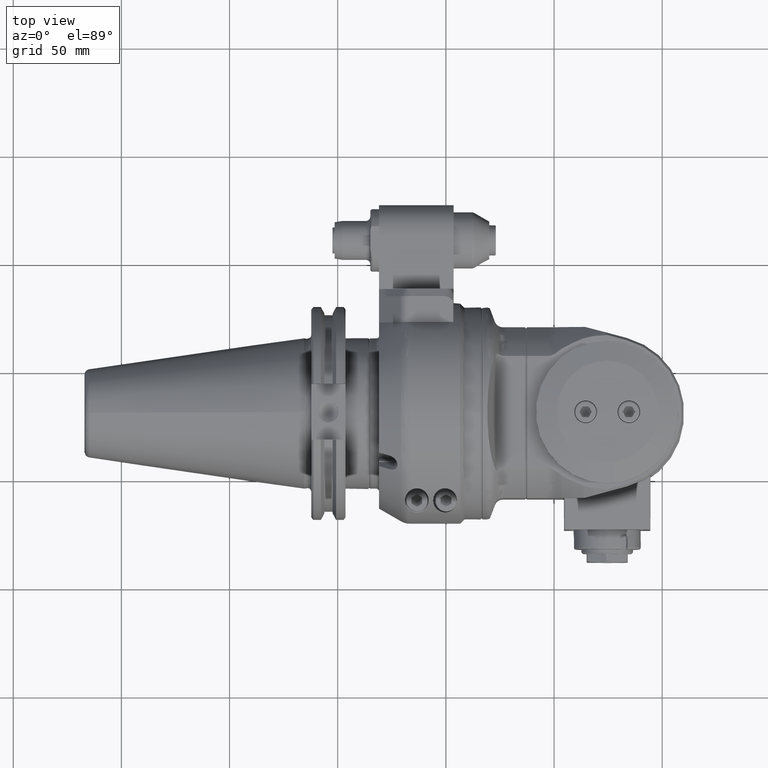
[diagram: clean part render]
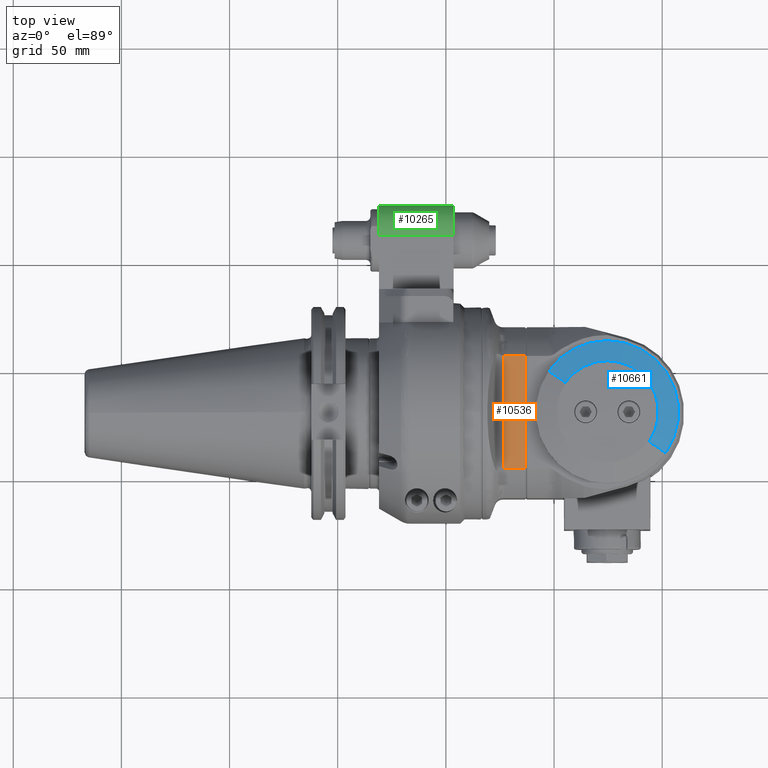
[diagram: same view with three faces highlighted in distinct colors, each labeled with its STEP entity id]
A machine part, top view with three faces highlighted in distinct colors.
Their STEP definitions:

[orange] entity #10536 — the highlighted planar face has unit normal (0, -0, 1).
#594=PLANE('',#11512);
#1221=FACE_OUTER_BOUND('',#1910,.T.);
#1910=EDGE_LOOP('',(#8772,#8773,#8774,#8775,#8776,#8777));
#2763=B_SPLINE_CURVE_WITH_KNOTS('',3,(#58781,#58782,#58783,#58784),
 .UNSPECIFIED.,.F.,.F.,(4,4),(-1.52896138526577,-1.49450354649291),
 .UNSPECIFIED.);
#2764=B_SPLINE_CURVE_WITH_KNOTS('',3,(#58788,#58789,#58790,#58791),
 .UNSPECIFIED.,.F.,.F.,(4,4),(-1.49450354648957,-1.46004570769395),
 .UNSPECIFIED.);
#3278=LINE('',#58770,#4021);
#3280=LINE('',#58779,#4023);
#3281=LINE('',#58785,#4024);
#3282=LINE('',#58787,#4025);
#4021=VECTOR('',#13751,51.99038372623);
#4023=VECTOR('',#13755,52.04411257838);
#4024=VECTOR('',#13756,9.34314575068412);
#4025=VECTOR('',#13757,9.34314575065611);
#4963=VERTEX_POINT('',#58763);
#4964=VERTEX_POINT('',#58769);
#4966=VERTEX_POINT('',#58777);
#4967=VERTEX_POINT('',#58778);
#4968=VERTEX_POINT('',#58780);
#4969=VERTEX_POINT('',#58786);
#6316=EDGE_CURVE('',#4964,#4963,#3278,.T.);
#6319=EDGE_CURVE('',#4966,#4967,#3280,.T.);
#6320=EDGE_CURVE('',#4966,#4968,#2763,.T.);
#6321=EDGE_CURVE('',#4964,#4968,#3281,.T.);
#6322=EDGE_CURVE('',#4969,#4963,#3282,.T.);
#6323=EDGE_CURVE('',#4969,#4967,#2764,.T.);
#8772=ORIENTED_EDGE('',*,*,#6319,.F.);
#8773=ORIENTED_EDGE('',*,*,#6320,.T.);
#8774=ORIENTED_EDGE('',*,*,#6321,.F.);
#8775=ORIENTED_EDGE('',*,*,#6316,.T.);
#8776=ORIENTED_EDGE('',*,*,#6322,.F.);
#8777=ORIENTED_EDGE('',*,*,#6323,.T.);
#10536=ADVANCED_FACE('',(#1221),#594,.T.);
#11512=AXIS2_PLACEMENT_3D('',#58776,#13753,#13754);
#13751=DIRECTION('',(1.066011239331E-14,0.,-1.));
#13753=DIRECTION('center_axis',(1.,0.,0.));
#13754=DIRECTION('ref_axis',(0.,-1.,0.));
#13755=DIRECTION('',(2.457472623853E-11,4.985147439005E-12,-1.));
#13756=DIRECTION('',(5.99464222955393E-8,0.999999999999988,-1.44745797196998E-7));
#13757=DIRECTION('',(-6.03921339411193E-8,-0.999999999999988,-1.45821953774398E-7));
#58763=CARTESIAN_POINT('',(35.5,38.,-25.99519186311));
#58769=CARTESIAN_POINT('',(35.5,38.,25.99519186311));
#58770=CARTESIAN_POINT('',(35.5,38.,25.99519186311));
#58776=CARTESIAN_POINT('Origin',(35.5,40.84040286651,25.99519186311));
#58777=CARTESIAN_POINT('',(35.4999998792733,47.6991697890893,26.0220542775929));
#58778=CARTESIAN_POINT('',(35.4999998796997,47.699169789295,-26.0220542776161));
#58779=CARTESIAN_POINT('',(35.49999963782,47.69916977385,26.02205629274));
#58780=CARTESIAN_POINT('',(35.5000003310998,47.3431457505435,25.9951912151145));
#58781=CARTESIAN_POINT('Ctrl Pts',(35.5,47.6991697894204,26.0220542754024));
#58782=CARTESIAN_POINT('Ctrl Pts',(35.5,47.5781278722832,26.0037585346155));
#58783=CARTESIAN_POINT('Ctrl Pts',(35.5,47.4580052130974,25.9951918631119));
#58784=CARTESIAN_POINT('Ctrl Pts',(35.5,47.34314575051,25.9951918631119));
#58785=CARTESIAN_POINT('',(35.5,38.,25.99519186311));
#58786=CARTESIAN_POINT('',(35.5000003289525,47.3431457505099,-25.9951912165918));
#58787=CARTESIAN_POINT('',(35.50000056425,47.34314575066,-25.99519050068));
#58788=CARTESIAN_POINT('Ctrl Pts',(35.5,47.34314575051,-25.9951918631119));
#58789=CARTESIAN_POINT('Ctrl Pts',(35.5,47.458005213162,-25.9951918631119));
#58790=CARTESIAN_POINT('Ctrl Pts',(35.5,47.5781278724185,-26.0037585346254));
#58791=CARTESIAN_POINT('Ctrl Pts',(35.5,47.6991697896249,-26.0220542754333));

[blue] entity #10661 — the highlighted conical surface has half-angle 75 deg.
#835=CONICAL_SURFACE('',#11729,28.33493649054,1.30899693899575);
#1346=FACE_OUTER_BOUND('',#2052,.T.);
#2052=EDGE_LOOP('',(#9365,#9366,#9367,#9368,#9369));
#2557=CIRCLE('',#11685,33.);
#2559=CIRCLE('',#11687,33.);
#2560=CIRCLE('',#11690,23.66987298108);
#3363=LINE('',#59524,#4106);
#3396=LINE('',#59679,#4139);
#4106=VECTOR('',#14190,9.65925826289064);
#4139=VECTOR('',#14303,9.65925826289064);
#5088=VERTEX_POINT('',#59509);
#5089=VERTEX_POINT('',#59511);
#5092=VERTEX_POINT('',#59517);
#5093=VERTEX_POINT('',#59521);
#5095=VERTEX_POINT('',#59527);
#6518=EDGE_CURVE('',#5088,#5089,#2557,.T.);
#6522=EDGE_CURVE('',#5092,#5088,#2559,.T.);
#6524=EDGE_CURVE('',#5093,#5092,#3363,.T.);
#6527=EDGE_CURVE('',#5095,#5093,#2560,.T.);
#6585=EDGE_CURVE('',#5095,#5089,#3396,.T.);
#9365=ORIENTED_EDGE('',*,*,#6527,.F.);
#9366=ORIENTED_EDGE('',*,*,#6585,.T.);
#9367=ORIENTED_EDGE('',*,*,#6518,.F.);
#9368=ORIENTED_EDGE('',*,*,#6522,.F.);
#9369=ORIENTED_EDGE('',*,*,#6524,.F.);
#10661=ADVANCED_FACE('',(#1346),#835,.T.);
#11685=AXIS2_PLACEMENT_3D('',#59512,#14179,#14180);
#11687=AXIS2_PLACEMENT_3D('',#59519,#14185,#14186);
#11690=AXIS2_PLACEMENT_3D('',#59530,#14195,#14196);
#11729=AXIS2_PLACEMENT_3D('',#59681,#14305,#14306);
#14179=DIRECTION('center_axis',(-1.,0.,0.));
#14180=DIRECTION('ref_axis',(0.,0.,-1.));
#14185=DIRECTION('center_axis',(-1.,0.,0.));
#14186=DIRECTION('ref_axis',(0.,0.,-1.));
#14190=DIRECTION('',(-0.25881904510251,0.79124011523623,-0.554032293222321));
#14195=DIRECTION('center_axis',(1.,0.,0.));
#14196=DIRECTION('ref_axis',(0.,-0.819152044289016,0.573576436351011));
#14303=DIRECTION('',(-0.25881904510251,-0.79124011523623,0.554032293222321));
#14305=DIRECTION('center_axis',(-1.,0.,0.));
#14306=DIRECTION('ref_axis',(0.,-0.57357643635143,-0.819152044288723));
#59509=CARTESIAN_POINT('',(39.0000000000001,-4.04133443718627E-15,-33.));
#59511=CARTESIAN_POINT('',(39.0000000000001,-27.03201746154,18.9280223996));
#59512=CARTESIAN_POINT('Origin',(39.0000000000001,0.,0.));
#59517=CARTESIAN_POINT('',(39.0000000000001,27.03201746154,-18.92802239958));
#59519=CARTESIAN_POINT('Origin',(39.0000000000001,0.,0.));
#59521=CARTESIAN_POINT('',(41.5000000000001,19.38922484051,-13.57648139337));
#59524=CARTESIAN_POINT('',(41.5000000000001,19.38922484051,-13.57648139337));
#59527=CARTESIAN_POINT('',(41.5000000000001,-19.38922484051,13.5764813934));
#59530=CARTESIAN_POINT('Origin',(41.5000000000001,0.,0.));
#59679=CARTESIAN_POINT('',(41.5000000000001,-19.38922484051,13.5764813934));
#59681=CARTESIAN_POINT('Origin',(40.2500000000001,0.,0.));

[green] entity #10265 — the highlighted cylindrical surface (edge-blend (fillet) strip) has radius 14 mm, axis along (-1, 0, 0).
#950=FACE_OUTER_BOUND('',#1592,.T.);
#1592=EDGE_LOOP('',(#7388,#7389,#7390,#7391));
#2277=CIRCLE('',#10995,14.);
#2286=CIRCLE('',#11013,14.);
#2948=LINE('',#15790,#3691);
#2949=LINE('',#15792,#3692);
#3691=VECTOR('',#12451,34.5);
#3692=VECTOR('',#12454,34.5);
#4438=VERTEX_POINT('',#15670);
#4439=VERTEX_POINT('',#15672);
#4464=VERTEX_POINT('',#15750);
#4465=VERTEX_POINT('',#15752);
#5543=EDGE_CURVE('',#4438,#4439,#2277,.T.);
#5580=EDGE_CURVE('',#4464,#4465,#2286,.T.);
#5600=EDGE_CURVE('',#4464,#4439,#2948,.T.);
#5601=EDGE_CURVE('',#4438,#4465,#2949,.T.);
#7388=ORIENTED_EDGE('',*,*,#5601,.T.);
#7389=ORIENTED_EDGE('',*,*,#5580,.F.);
#7390=ORIENTED_EDGE('',*,*,#5600,.T.);
#7391=ORIENTED_EDGE('',*,*,#5543,.F.);
#10068=CYLINDRICAL_SURFACE('',#11027,14.);
#10265=ADVANCED_FACE('',(#950),#10068,.T.);
#10995=AXIS2_PLACEMENT_3D('',#15673,#12352,#12353);
#11013=AXIS2_PLACEMENT_3D('',#15753,#12412,#12413);
#11027=AXIS2_PLACEMENT_3D('',#15791,#12452,#12453);
#12352=DIRECTION('center_axis',(1.,0.,0.));
#12353=DIRECTION('ref_axis',(0.,1.,0.));
#12412=DIRECTION('center_axis',(-1.,0.,0.));
#12413=DIRECTION('ref_axis',(0.,0.,1.));
#12451=DIRECTION('',(1.,0.,0.));
#12452=DIRECTION('center_axis',(-1.,0.,0.));
#12453=DIRECTION('ref_axis',(0.,-1.,0.));
#12454=DIRECTION('',(-1.,0.,0.));
#15670=CARTESIAN_POINT('',(-17.,96.25,1.));
#15672=CARTESIAN_POINT('',(-17.,82.25,15.));
#15673=CARTESIAN_POINT('Origin',(-17.,82.25,1.));
#15750=CARTESIAN_POINT('',(-51.5,82.25,15.));
#15752=CARTESIAN_POINT('',(-51.5,96.25,1.));
#15753=CARTESIAN_POINT('Origin',(-51.5,82.25,1.));
#15790=CARTESIAN_POINT('',(-51.5,82.25,15.));
#15791=CARTESIAN_POINT('Origin',(-43.,82.25,1.));
#15792=CARTESIAN_POINT('',(-17.,96.25,1.));